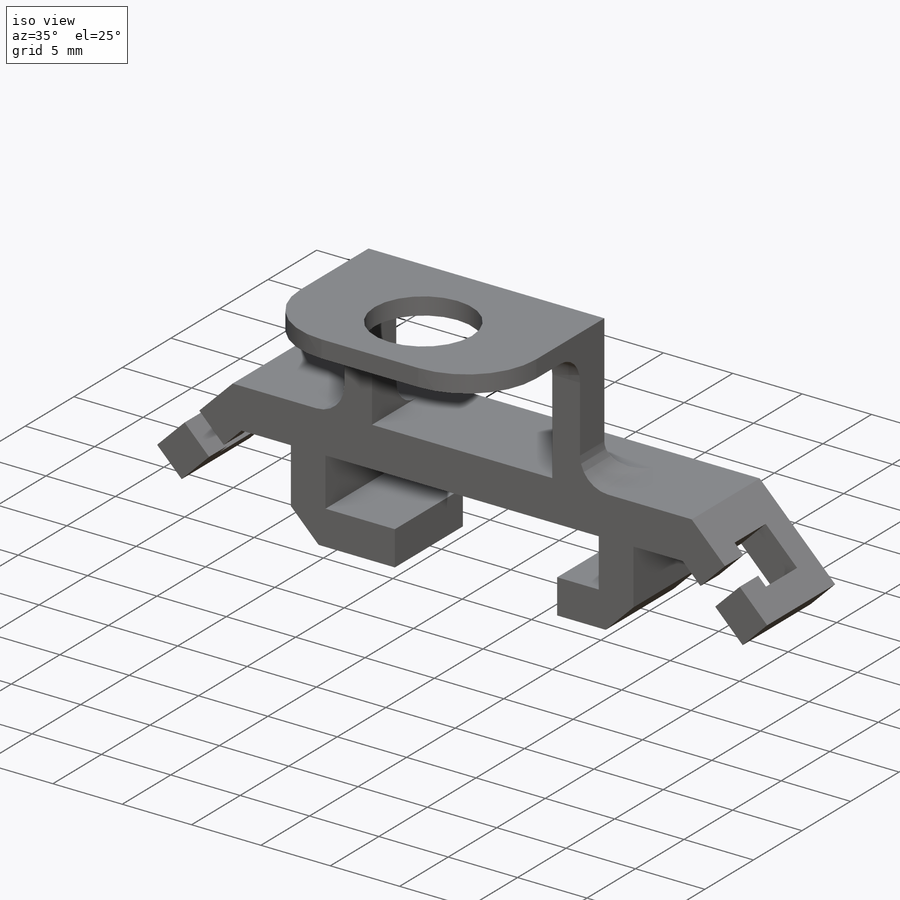
[diagram: iso view]
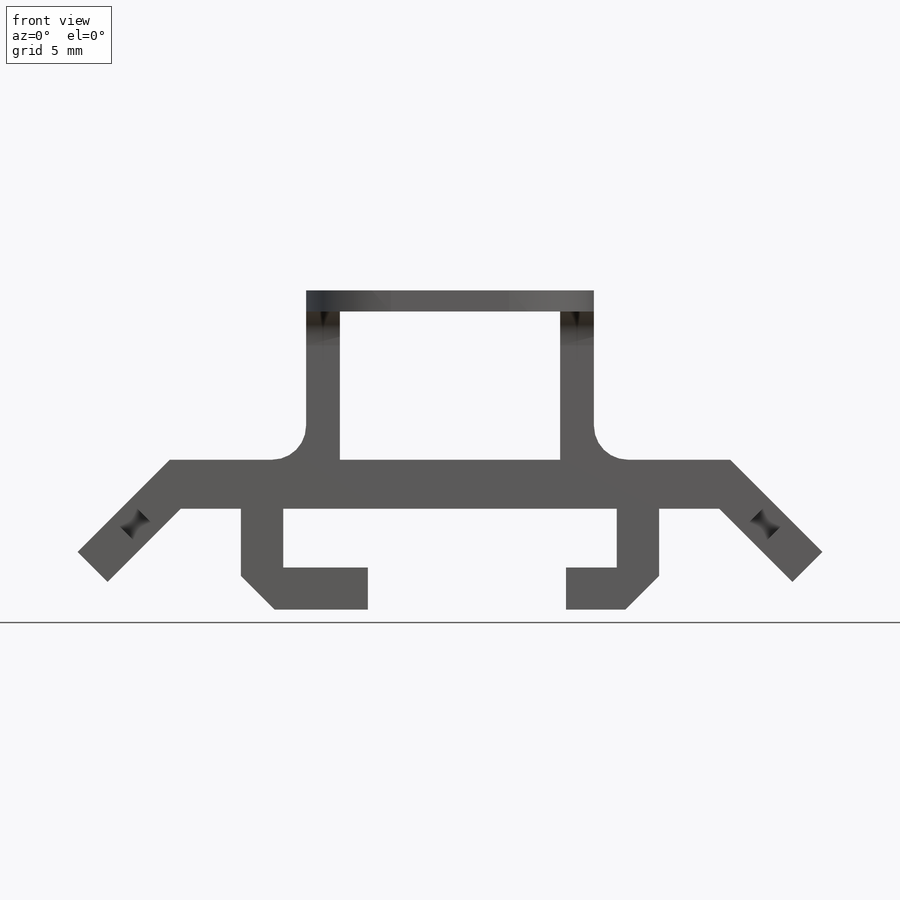
[diagram: front view]
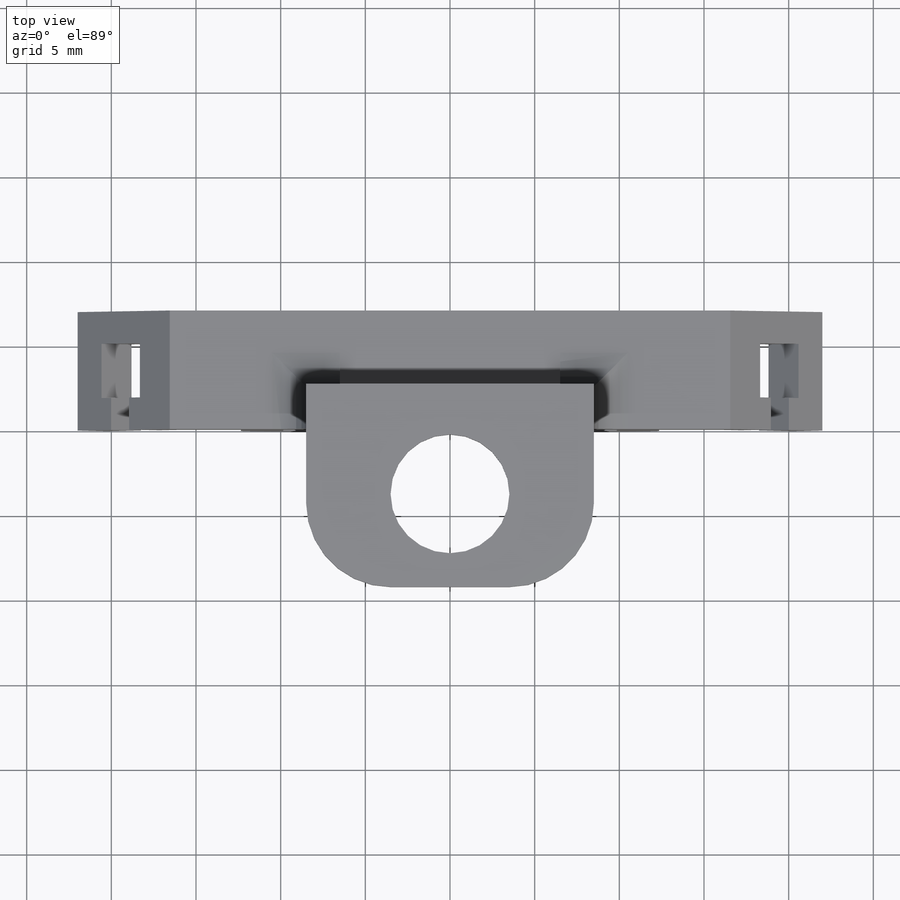
[diagram: top view]
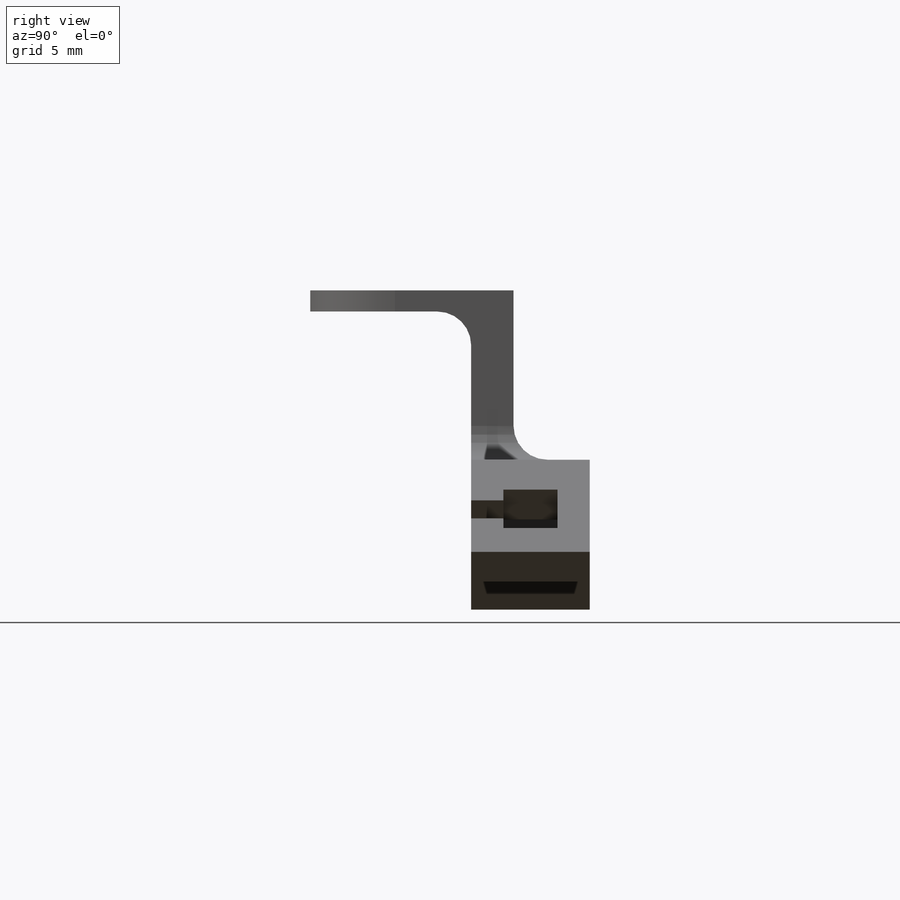
[diagram: right view]
SOLIDWORKS PART (.sldprt)
format: sldprt  version: not decoded by parser v0  size: 480,256 bytes
history: native  units: mm
features: sketch x14, plane x11, fillet x8, extrude x7, cut_extrude x6, chamfer x2, material x1 (+13 scaffold rows collapsed)
feature tree (62):
  scaffold x13  (default folders/planes/origin — collapsed)
  material  "Material <not specified>"
  sketch  "Sketch2"  dims[c1.D1=2.5mm c1.D2=2.5mm c1.D3=25.0mm c1.D4=25.0mm c1.D5=7.2mm c1.D6=7.2mm c2.D5=2.5mm]
  extrude  "Boss-Extrude2"  Depth=5mm
  extrude  "Boss-Extrude3"  [1 undecoded]
  sketch  "Sketch2<2>"  dims[D1=2.0mm]
  plane  "Plane1"  Offset=0mm
  sketch  "Sketch4"  dims[D1=3.2mm D2=3.2mm]
  cut_extrude  "Cut-Extrude1"  Depth=2.5mm
  plane  "Plane2"  Offset=0mm
  sketch  "Sketch5"  dims[D1=3.2mm]
  cut_extrude  "Cut-Extrude2"  Depth=2.5mm
  plane  "Plane4"  Offset=0mm
  sketch  "Sketch6"  dims[D1=2.8mm D2=1.5mm D3=2.5mm]
  cut_extrude  "Cut-Extrude4"  [1 undecoded]
  sketch  "Sketch7"  dims[c1.D1=2.5mm c1.D2=2.5mm c1.D3=2.0mm c2.D2=3.85mm c2.D1=2.8mm c3.D2=1.5mm c3.D3=2.5mm]
  cut_extrude  "Cut-Extrude5"  [1 undecoded]
  plane  "Plane6"  Offset=0mm
  sketch  "Sketch8"  dims[c1.D1=6.35mm c1.D2=6.35mm c1.D3=2.5mm c2.D1=9.85mm c2.D2=9.85mm c2.D3=2.5mm c2.D4=2.5mm]
  extrude  "Boss-Extrude4"  Depth=5.96mm
  plane  "Plane7"  Offset=0mm
  sketch  "Sketch10"  dims[D1=2.49mm]
  extrude  "Boss-Extrude5"  Depth=3mm
  plane  "Plane8"  Offset=0mm
  sketch  "Sketch11"  dims[D1=2.49mm]
  extrude  "Boss-Extrude6"  Depth=5mm
  plane  "Plane9"  Offset=0mm
  sketch  "Sketch12"  dims[c1.D1=2.5mm c1.D2=17.0mm c2.D1=17.0mm c2.D2=8.5mm c2.D3=2.5mm]
  extrude  "Boss-Extrude7"  Depth=10mm
  plane  "Plane10"  Offset=0mm
  sketch  "Sketch14"  dims[c1.D1=8.0mm c1.D2=13.0mm c2.D1=1.25mm c2.D2=0.0mm]
  cut_extrude  "Cut-Extrude7"  [1 undecoded]
  sketch  "Sketch16"  dims[D1=1.25mm]
  extrude  "Boss-Extrude8"  Depth=9.5mm
  plane  "Plane11"  Offset=0mm
  sketch  "Sketch17"  dims[c1.D1=7.0mm c1.D3=3.5mm c2.D1=5.5mm c2.D2=8.5mm]
  cut_extrude  "Cut-Extrude8"  [1 undecoded]
  fillet  "Fillet7"  Radius=2mm
  fillet  "Fillet8"  Radius=5mm
  fillet  "Fillet9"  Radius=5mm
  chamfer  "Chamfer1"  Distance=2mm Angle=45deg
  chamfer  "Chamfer2"  Distance=2mm Angle=45deg
  plane  "Plane13"  Offset=0mm
  sketch  "Sketch22"
  plane  "Plane14"  Offset=0mm
  fillet  "Fillet11"  Radius=2mm
  fillet  "Fillet12"  Radius=2mm
  fillet  "Fillet13"  Radius=2mm
  fillet  "Fillet14"  Radius=2mm
  fillet  "Fillet16"  Radius=2mm
decode coverage: 31 of 37 modeling features carry decoded parameters
note: 5 parameter values undecoded
summary: no parameter record found for 5 features
note: suppression state not decoded; provenance and decode notes live in map.json
